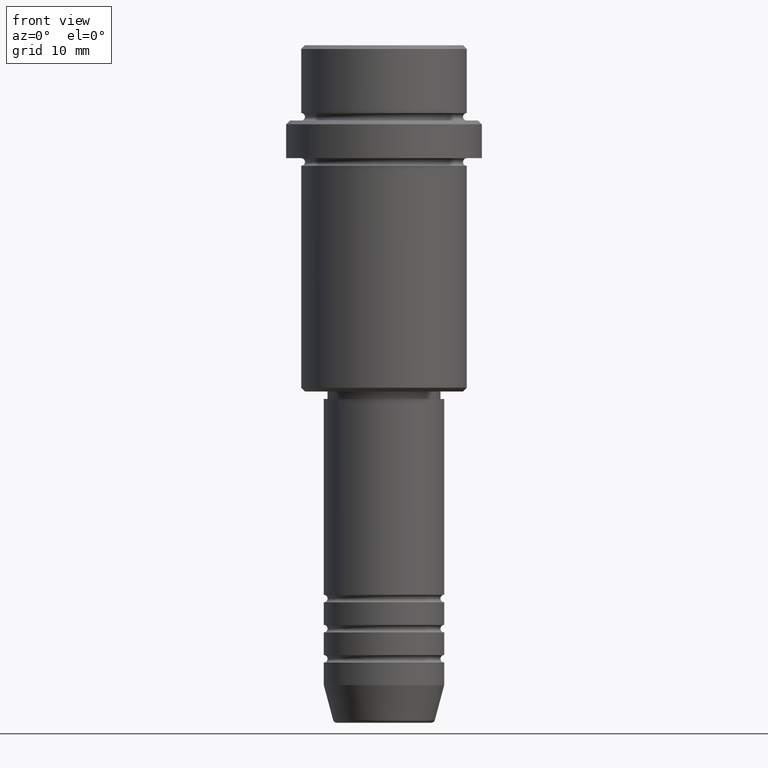
[diagram: clean part render]
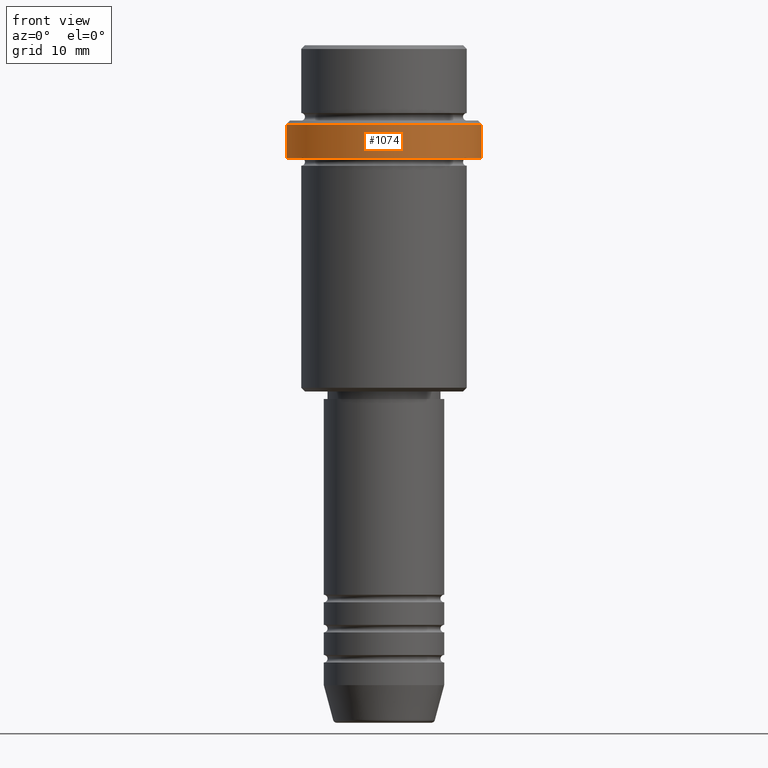
[diagram: same view with one face highlighted and labeled with its STEP entity id]
A machine part, front view. The second image highlights one B-rep face of the part: STEP entity #1074.
In plain terms, the highlighted cylindrical surface (partial cylindrical patch) has radius 13 mm, axis along (-0, -0, 1).
Its self-contained STEP definition (entity closure, byte-faithful):
#69 = CARTESIAN_POINT ( 'NONE',  ( -13.00000000000000000, 1.592040838891559095E-15, 0.000000000000000000 ) ) ;
#187 = AXIS2_PLACEMENT_3D ( 'NONE', #196, #1089, #1343 ) ;
#190 = DIRECTION ( 'NONE',  ( 1.000000000000000000, 0.000000000000000000, 0.000000000000000000 ) ) ;
#196 = CARTESIAN_POINT ( 'NONE',  ( 0.000000000000000000, 0.000000000000000000, -15.00000000000000178 ) ) ;
#207 = VECTOR ( 'NONE', #1116, 1000.000000000000000 ) ;
#223 = LINE ( 'NONE', #1331, #207 ) ;
#272 = DIRECTION ( 'NONE',  ( -0.000000000000000000, -0.000000000000000000, 1.000000000000000000 ) ) ;
#282 = CARTESIAN_POINT ( 'NONE',  ( 0.000000000000000000, 0.000000000000000000, -10.50000000000000711 ) ) ;
#292 = VERTEX_POINT ( 'NONE', #743 ) ;
#312 = CYLINDRICAL_SURFACE ( 'NONE', #857, 13.00000000000000000 ) ;
#416 = CIRCLE ( 'NONE', #187, 13.00000000000000000 ) ;
#477 = ORIENTED_EDGE ( 'NONE', *, *, #1134, .T. ) ;
#590 = ORIENTED_EDGE ( 'NONE', *, *, #982, .T. ) ;
#614 = EDGE_LOOP ( 'NONE', ( #822, #477, #1033, #590 ) ) ;
#624 = FACE_OUTER_BOUND ( 'NONE', #614, .T. ) ;
#650 = VERTEX_POINT ( 'NONE', #1262 ) ;
#735 = CARTESIAN_POINT ( 'NONE',  ( 0.000000000000000000, 0.000000000000000000, 0.000000000000000000 ) ) ;
#743 = CARTESIAN_POINT ( 'NONE',  ( 13.00000000000000000, 0.000000000000000000, -15.00000000000000178 ) ) ;
#785 = CARTESIAN_POINT ( 'NONE',  ( 13.00000000000000000, 0.000000000000000000, -10.50000000000000711 ) ) ;
#807 = EDGE_CURVE ( 'NONE', #292, #1353, #223, .T. ) ;
#822 = ORIENTED_EDGE ( 'NONE', *, *, #1234, .F. ) ;
#857 = AXIS2_PLACEMENT_3D ( 'NONE', #735, #1076, #190 ) ;
#915 = VERTEX_POINT ( 'NONE', #1263 ) ;
#925 = CIRCLE ( 'NONE', #1143, 13.00000000000000000 ) ;
#982 = EDGE_CURVE ( 'NONE', #1353, #650, #925, .T. ) ;
#1004 = VECTOR ( 'NONE', #272, 1000.000000000000000 ) ;
#1033 = ORIENTED_EDGE ( 'NONE', *, *, #807, .T. ) ;
#1074 = ADVANCED_FACE ( 'NONE', ( #624 ), #312, .T. ) ;
#1076 = DIRECTION ( 'NONE',  ( -0.000000000000000000, -0.000000000000000000, 1.000000000000000000 ) ) ;
#1089 = DIRECTION ( 'NONE',  ( -0.000000000000000000, -0.000000000000000000, 1.000000000000000000 ) ) ;
#1116 = DIRECTION ( 'NONE',  ( -0.000000000000000000, -0.000000000000000000, 1.000000000000000000 ) ) ;
#1134 = EDGE_CURVE ( 'NONE', #915, #292, #416, .T. ) ;
#1143 = AXIS2_PLACEMENT_3D ( 'NONE', #282, #1168, #1370 ) ;
#1168 = DIRECTION ( 'NONE',  ( 0.000000000000000000, 0.000000000000000000, -1.000000000000000000 ) ) ;
#1234 = EDGE_CURVE ( 'NONE', #915, #650, #1354, .T. ) ;
#1262 = CARTESIAN_POINT ( 'NONE',  ( -13.00000000000000000, 1.592040838891559095E-15, -10.50000000000000711 ) ) ;
#1263 = CARTESIAN_POINT ( 'NONE',  ( -13.00000000000000000, 1.592040838891559095E-15, -15.00000000000000178 ) ) ;
#1331 = CARTESIAN_POINT ( 'NONE',  ( 13.00000000000000000, 0.000000000000000000, 0.000000000000000000 ) ) ;
#1343 = DIRECTION ( 'NONE',  ( 1.000000000000000000, 0.000000000000000000, 0.000000000000000000 ) ) ;
#1353 = VERTEX_POINT ( 'NONE', #785 ) ;
#1354 = LINE ( 'NONE', #69, #1004 ) ;
#1370 = DIRECTION ( 'NONE',  ( 1.000000000000000000, 0.000000000000000000, 0.000000000000000000 ) ) ;